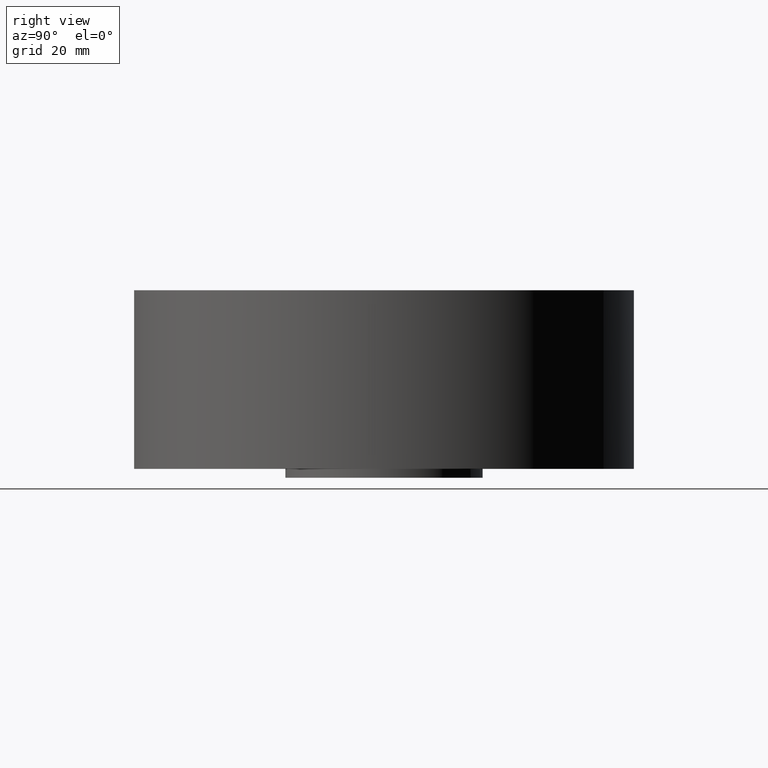
[diagram: clean part render]
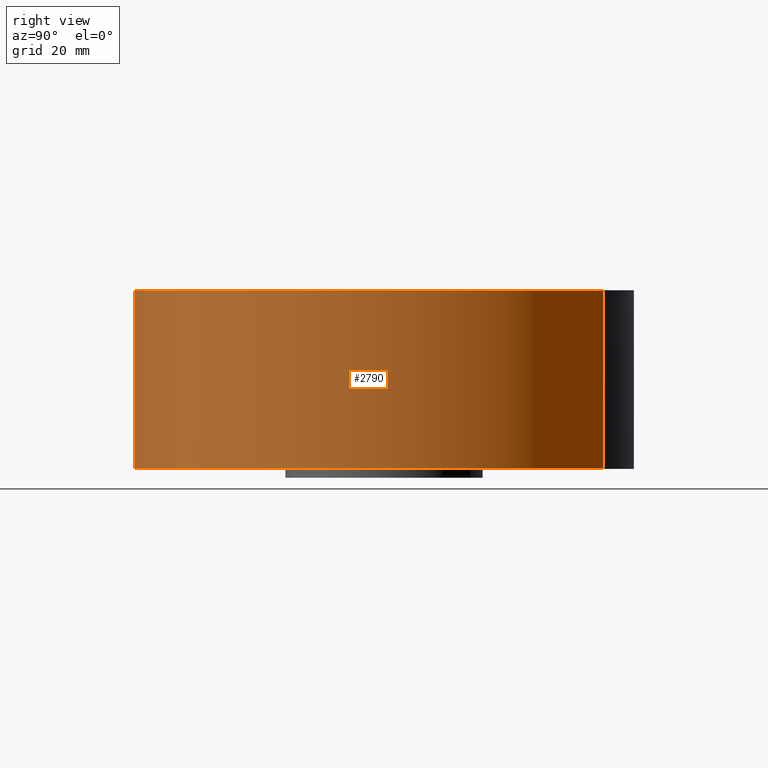
[diagram: same view with one face highlighted and labeled with its STEP entity id]
A machine part, right view. The second image highlights one B-rep face of the part: STEP entity #2790.
In plain terms, the highlighted cylindrical surface (partial cylindrical patch) has radius 44.45 mm, axis along (0, 0, -1).
Its self-contained STEP definition (entity closure, byte-faithful):
#2638=AXIS2_PLACEMENT_3D('Circle Axis2P3D',#2636,#2637,$) ;
#2751=AXIS2_PLACEMENT_3D('Cylinder Axis2P3D',#2748,#2749,#2750) ;
#2781=AXIS2_PLACEMENT_3D('Circle Axis2P3D',#2779,#2780,$) ;
#2631=CARTESIAN_POINT('Vertex',(-0.838994692561,-1.53576948331,-3.83245491335E-014)) ;
#2633=CARTESIAN_POINT('Vertex',(0.838994692561,1.53576948331,-3.83245491335E-014)) ;
#2636=CARTESIAN_POINT('Axis2P3D Location',(0.,0.,0.)) ;
#2748=CARTESIAN_POINT('Axis2P3D Location',(0.,0.,0.593750000002)) ;
#2753=CARTESIAN_POINT('Line Origine',(-0.838994692561,-1.53576948331,0.625000000002)) ;
#2757=CARTESIAN_POINT('Vertex',(-0.838994692561,-1.53576948331,1.25)) ;
#2764=CARTESIAN_POINT('Vertex',(0.838994692561,1.53576948331,1.25)) ;
#2767=CARTESIAN_POINT('Line Origine',(0.838994692561,1.53576948331,0.625000000002)) ;
#2779=CARTESIAN_POINT('Axis2P3D Location',(0.,0.,1.25)) ;
#2637=DIRECTION('Axis2P3D Direction',(0.,0.,-0.0393700787402)) ;
#2749=DIRECTION('Axis2P3D Direction',(0.,0.,-0.0393700787402)) ;
#2750=DIRECTION('Axis2P3D XDirection',(0.0188750212049,0.0345504945626,0.)) ;
#2754=DIRECTION('Vector Direction',(0.,0.,-0.0393700787402)) ;
#2768=DIRECTION('Vector Direction',(0.,0.,-0.0393700787402)) ;
#2780=DIRECTION('Axis2P3D Direction',(0.,0.,-0.0393700787402)) ;
#2755=VECTOR('Line Direction',#2754,0.0393700787402) ;
#2769=VECTOR('Line Direction',#2768,0.0393700787402) ;
#2785=ORIENTED_EDGE('',*,*,#2640,.F.) ;
#2786=ORIENTED_EDGE('',*,*,#2771,.T.) ;
#2787=ORIENTED_EDGE('',*,*,#2783,.T.) ;
#2788=ORIENTED_EDGE('',*,*,#2759,.F.) ;
#2790=ADVANCED_FACE('PartBody',(#2789),#2752,.T.) ;
#2639=CIRCLE('generated circle',#2638,1.75000000001) ;
#2782=CIRCLE('generated circle',#2781,1.75000000001) ;
#2752=CYLINDRICAL_SURFACE('generated cylinder',#2751,1.75000000001) ;
#2640=EDGE_CURVE('',#2634,#2632,#2639,.T.) ;
#2759=EDGE_CURVE('',#2632,#2758,#2756,.F.) ;
#2771=EDGE_CURVE('',#2634,#2765,#2770,.F.) ;
#2783=EDGE_CURVE('',#2765,#2758,#2782,.T.) ;
#2784=EDGE_LOOP('',(#2785,#2786,#2787,#2788)) ;
#2789=FACE_OUTER_BOUND('',#2784,.T.) ;
#2756=LINE('Line',#2753,#2755) ;
#2770=LINE('Line',#2767,#2769) ;
#2632=VERTEX_POINT('',#2631) ;
#2634=VERTEX_POINT('',#2633) ;
#2758=VERTEX_POINT('',#2757) ;
#2765=VERTEX_POINT('',#2764) ;